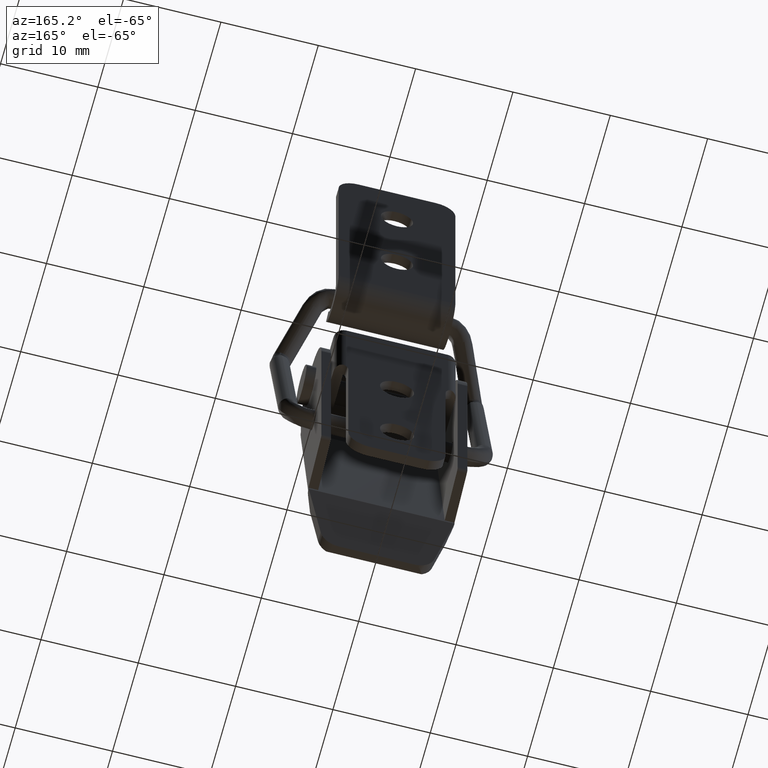
[diagram: clean part render]
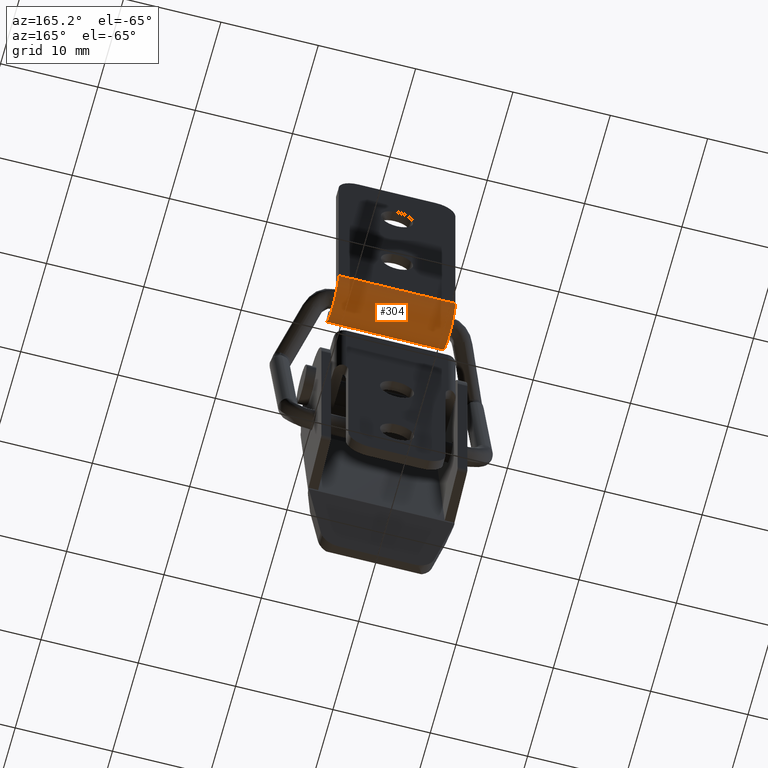
[diagram: same view with one face highlighted and labeled with its STEP entity id]
A machine part, auxiliary view. The second image highlights one B-rep face of the part: STEP entity #304.
In plain terms, the highlighted cylindrical surface (edge-blend (fillet) strip) has radius 2.5 mm, axis along (1, 0, 0).
Its self-contained STEP definition (entity closure, byte-faithful):
#304=ADVANCED_FACE('',(#1512),#1511,.T.);
#1511=CYLINDRICAL_SURFACE('',#3578,2.50000000000E+00);
#1512=FACE_OUTER_BOUND('',#3579,.T.);
#3575=CARTESIAN_POINT('',(9.94000000000E+02,0.00000000000E+00,2.50000000000E+00));
#3576=DIRECTION('',(1.00000000000E+00,-0.00000000000E+00,-0.00000000000E+00));
#3577=DIRECTION('',(0.00000000000E+00,-1.47809411130E-01,9.89015863362E-01));
#3578=AXIS2_PLACEMENT_3D('',#3575,#3576,#3577);
#3579=EDGE_LOOP('',(#4254,#4255,#4256,#4257));
#4254=ORIENTED_EDGE('',*,*,#4584,.F.);
#4255=ORIENTED_EDGE('',*,*,#4609,.F.);
#4256=ORIENTED_EDGE('',*,*,#4590,.T.);
#4257=ORIENTED_EDGE('',*,*,#4587,.T.);
#4584=EDGE_CURVE('',#6626,#6591,#6633,.T.);
#4587=EDGE_CURVE('',#6651,#6591,#6652,.T.);
#4590=EDGE_CURVE('',#6671,#6651,#6672,.T.);
#4609=EDGE_CURVE('',#6671,#6626,#6797,.T.);
#6591=VERTEX_POINT('',#8295);
#6626=VERTEX_POINT('',#8316);
#6633=CIRCLE('',#8323,2.50000000000E+00);
#6651=VERTEX_POINT('',#8330);
#6652=LINE('',#8331,#8332);
#6671=VERTEX_POINT('',#8341);
#6672=CIRCLE('',#8345,2.50000000000E+00);
#6797=LINE('',#8420,#8421);
#8295=CARTESIAN_POINT('',(-6.00000000000E+00,-2.37764129074E+00,1.72745751406E+00));
#8316=CARTESIAN_POINT('',(-6.00000000000E+00,2.50000000000E+00,2.50000000000E+00));
#8320=CARTESIAN_POINT('',(-6.00000000000E+00,0.00000000000E+00,2.50000000000E+00));
#8321=DIRECTION('',(-1.00000000000E+00,-0.00000000000E+00,-0.00000000000E+00));
#8322=DIRECTION('',(-0.00000000000E+00,-0.00000000000E+00,1.00000000000E+00));
#8323=AXIS2_PLACEMENT_3D('',#8320,#8321,#8322);
#8330=CARTESIAN_POINT('',(6.00000000000E+00,-2.37764129074E+00,1.72745751406E+00));
#8331=CARTESIAN_POINT('',(6.00000000000E+00,-2.37764129074E+00,1.72745751406E+00));
#8332=VECTOR('',#8333,1.20000000000E+01);
#8333=DIRECTION('',(-1.00000000000E+00,0.00000000000E+00,0.00000000000E+00));
#8341=CARTESIAN_POINT('',(6.00000000000E+00,2.50000000000E+00,2.50000000000E+00));
#8342=CARTESIAN_POINT('',(6.00000000000E+00,0.00000000000E+00,2.50000000000E+00));
#8343=DIRECTION('',(-1.00000000000E+00,-0.00000000000E+00,-0.00000000000E+00));
#8344=DIRECTION('',(-0.00000000000E+00,-0.00000000000E+00,1.00000000000E+00));
#8345=AXIS2_PLACEMENT_3D('',#8342,#8343,#8344);
#8420=CARTESIAN_POINT('',(6.00000000000E+00,2.50000000000E+00,2.50000000000E+00));
#8421=VECTOR('',#8422,1.20000000000E+01);
#8422=DIRECTION('',(-1.00000000000E+00,0.00000000000E+00,0.00000000000E+00));